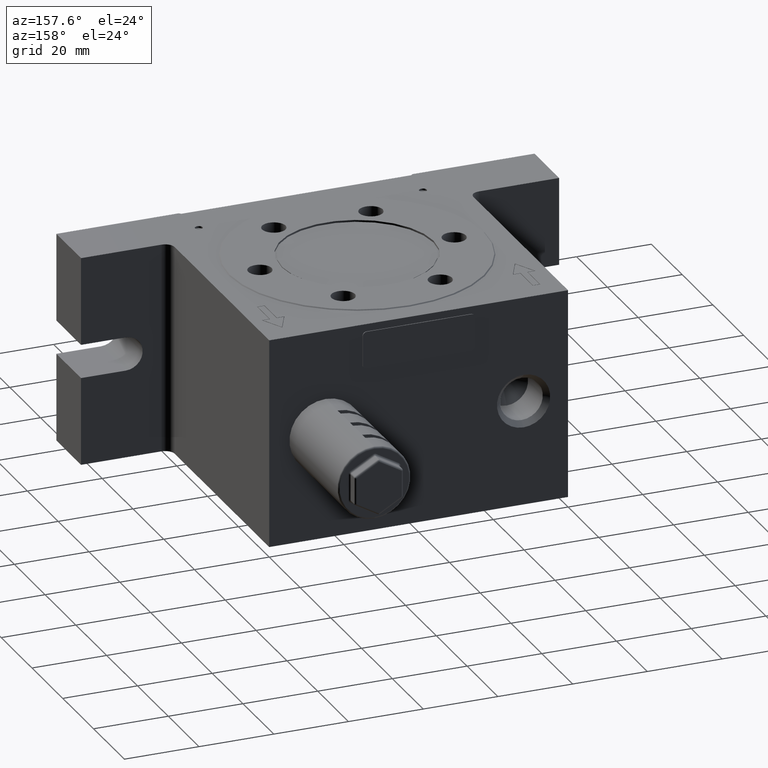
[diagram: clean part render]
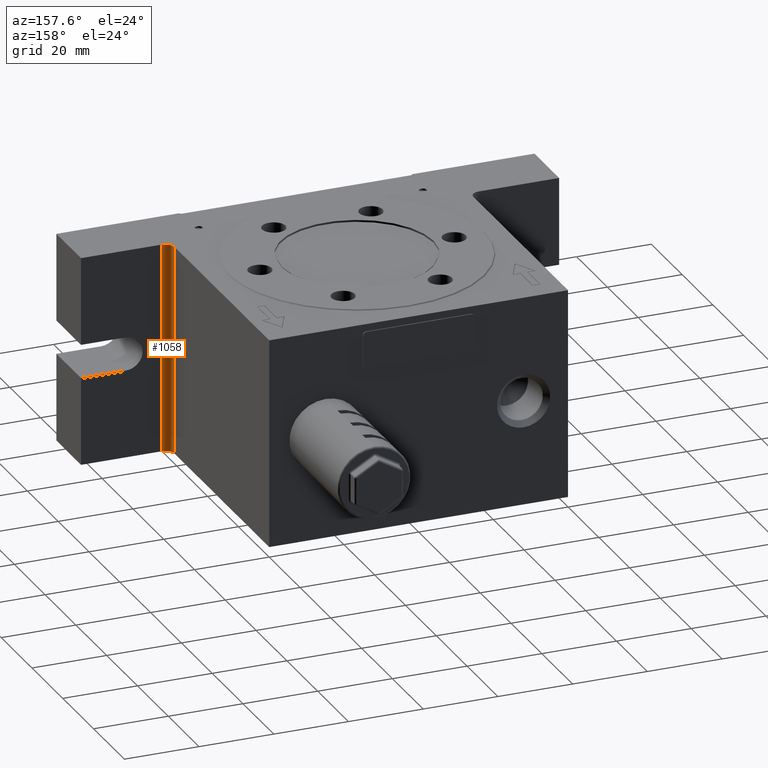
[diagram: same view with one face highlighted and labeled with its STEP entity id]
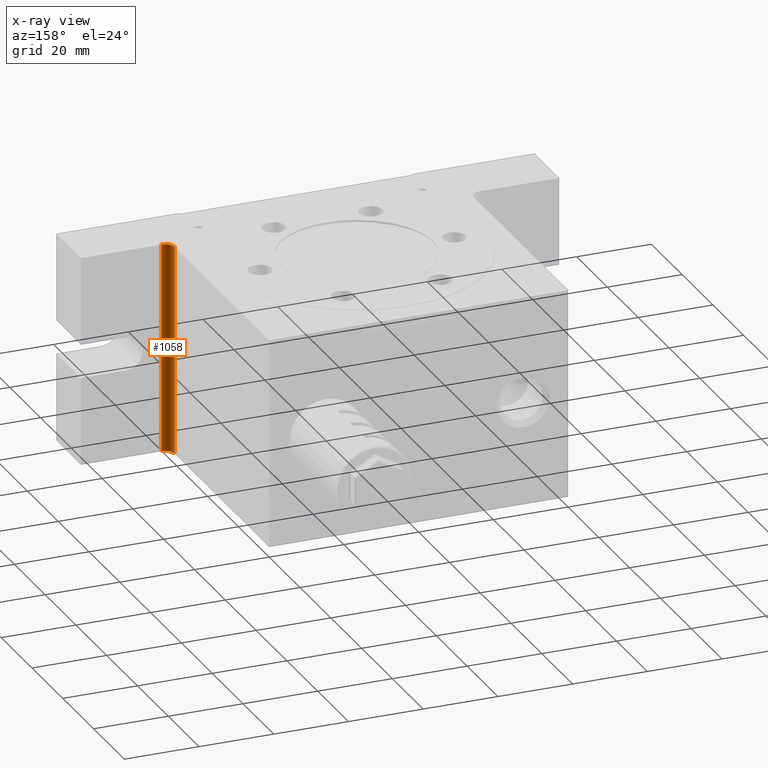
[diagram: x-ray of the same camera — body ghosted, the highlighted face saturated]
A machine part, auxiliary view. The second image highlights one B-rep face of the part: STEP entity #1058.
The next image is the same camera in x-ray: the body ghosted, the highlighted face saturated — about 0% of this face is hidden behind the body in this view.
In plain terms, the highlighted cylindrical surface (edge-blend (fillet) strip) has radius 2.5 mm, axis along (0, 0, -1).
Its self-contained STEP definition (entity closure, byte-faithful):
#42 = VERTEX_POINT ( 'NONE', #21442 ) ;
#1058 = ADVANCED_FACE ( 'NONE', ( #16695 ), #18621, .F. ) ;
#1340 = ORIENTED_EDGE ( 'NONE', *, *, #13982, .F. ) ;
#1797 = AXIS2_PLACEMENT_3D ( 'NONE', #13284, #6207, #16955 ) ;
#2090 = DIRECTION ( 'NONE',  ( -0.0000000000000000000, -0.0000000000000000000, -1.000000000000000000 ) ) ;
#4215 = CARTESIAN_POINT ( 'NONE',  ( 40.00000000000000000, -21.50000000000000000, 28.00000000000000000 ) ) ;
#4287 = VECTOR ( 'NONE', #2090, 1000.000000000000000 ) ;
#5049 = DIRECTION ( 'NONE',  ( -1.000000000000000000, 0.0000000000000000000, 0.0000000000000000000 ) ) ;
#6207 = DIRECTION ( 'NONE',  ( 0.0000000000000000000, 0.0000000000000000000, -1.000000000000000000 ) ) ;
#7408 = CARTESIAN_POINT ( 'NONE',  ( 42.50000000000000000, -24.00000000000000000, -28.00000000000000000 ) ) ;
#8861 = AXIS2_PLACEMENT_3D ( 'NONE', #14732, #11019, #19728 ) ;
#9348 = DIRECTION ( 'NONE',  ( 0.0000000000000000000, 0.0000000000000000000, 1.000000000000000000 ) ) ;
#9456 = LINE ( 'NONE', #12594, #4287 ) ;
#11019 = DIRECTION ( 'NONE',  ( -0.0000000000000000000, -0.0000000000000000000, 1.000000000000000000 ) ) ;
#11326 = EDGE_CURVE ( 'NONE', #22312, #21107, #9456, .T. ) ;
#12457 = AXIS2_PLACEMENT_3D ( 'NONE', #19087, #17637, #5049 ) ;
#12594 = CARTESIAN_POINT ( 'NONE',  ( 40.00000000000000000, -21.50000000000000000, -28.00000000000000000 ) ) ;
#13109 = EDGE_LOOP ( 'NONE', ( #1340, #15190, #15605, #15294 ) ) ;
#13284 = CARTESIAN_POINT ( 'NONE',  ( 42.50000000000000000, -21.50000000000000000, -28.00000000000000000 ) ) ;
#13982 = EDGE_CURVE ( 'NONE', #21107, #18872, #16916, .T. ) ;
#14732 = CARTESIAN_POINT ( 'NONE',  ( 42.50000000000000000, -21.50000000000000000, -28.00000000000000000 ) ) ;
#15089 = CIRCLE ( 'NONE', #12457, 2.500000000000002200 ) ;
#15190 = ORIENTED_EDGE ( 'NONE', *, *, #11326, .F. ) ;
#15294 = ORIENTED_EDGE ( 'NONE', *, *, #16830, .F. ) ;
#15605 = ORIENTED_EDGE ( 'NONE', *, *, #18727, .F. ) ;
#16695 = FACE_OUTER_BOUND ( 'NONE', #13109, .T. ) ;
#16830 = EDGE_CURVE ( 'NONE', #18872, #42, #20134, .T. ) ;
#16916 = CIRCLE ( 'NONE', #8861, 2.500000000000002200 ) ;
#16955 = DIRECTION ( 'NONE',  ( -1.000000000000000000, 0.0000000000000000000, 0.0000000000000000000 ) ) ;
#17637 = DIRECTION ( 'NONE',  ( 0.0000000000000000000, 0.0000000000000000000, -1.000000000000000000 ) ) ;
#18064 = CARTESIAN_POINT ( 'NONE',  ( 42.50000000000000000, -24.00000000000000000, 28.00000000000000000 ) ) ;
#18621 = CYLINDRICAL_SURFACE ( 'NONE', #1797, 2.500000000000002200 ) ;
#18727 = EDGE_CURVE ( 'NONE', #42, #22312, #15089, .T. ) ;
#18764 = VECTOR ( 'NONE', #9348, 1000.000000000000000 ) ;
#18872 = VERTEX_POINT ( 'NONE', #7408 ) ;
#19087 = CARTESIAN_POINT ( 'NONE',  ( 42.50000000000000000, -21.50000000000000000, 28.00000000000000000 ) ) ;
#19728 = DIRECTION ( 'NONE',  ( -1.000000000000000000, 0.0000000000000000000, 0.0000000000000000000 ) ) ;
#20134 = LINE ( 'NONE', #18064, #18764 ) ;
#21107 = VERTEX_POINT ( 'NONE', #22436 ) ;
#21442 = CARTESIAN_POINT ( 'NONE',  ( 42.50000000000000000, -24.00000000000000000, 28.00000000000000000 ) ) ;
#22312 = VERTEX_POINT ( 'NONE', #4215 ) ;
#22436 = CARTESIAN_POINT ( 'NONE',  ( 40.00000000000000000, -21.50000000000000000, -28.00000000000000000 ) ) ;